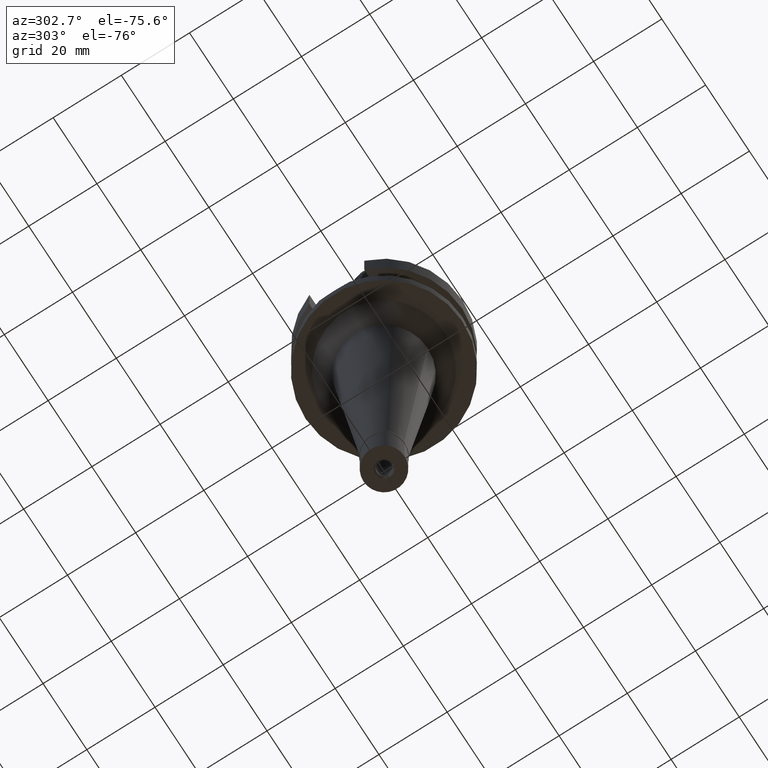
[diagram: clean part render]
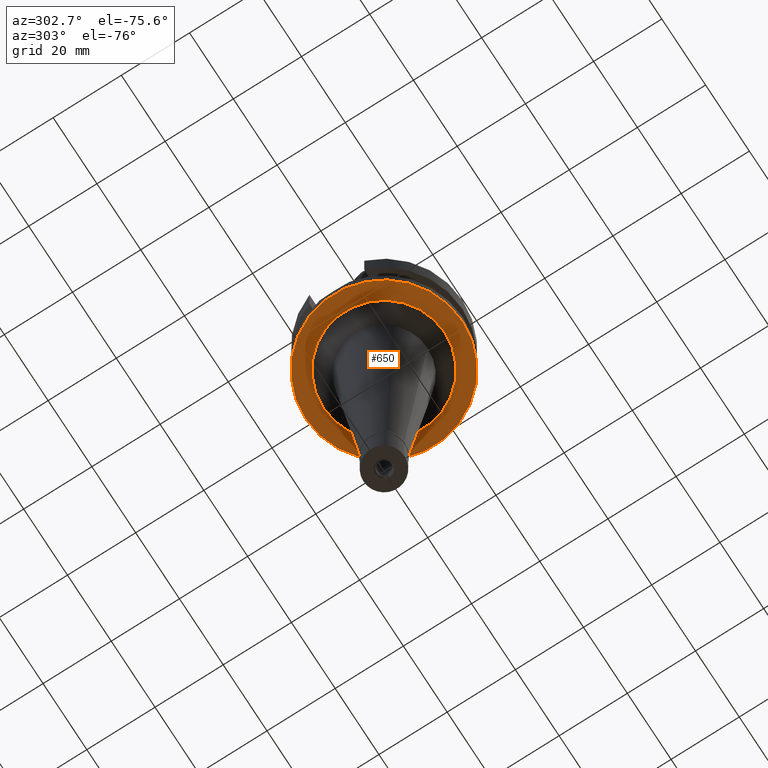
[diagram: same view with one face highlighted and labeled with its STEP entity id]
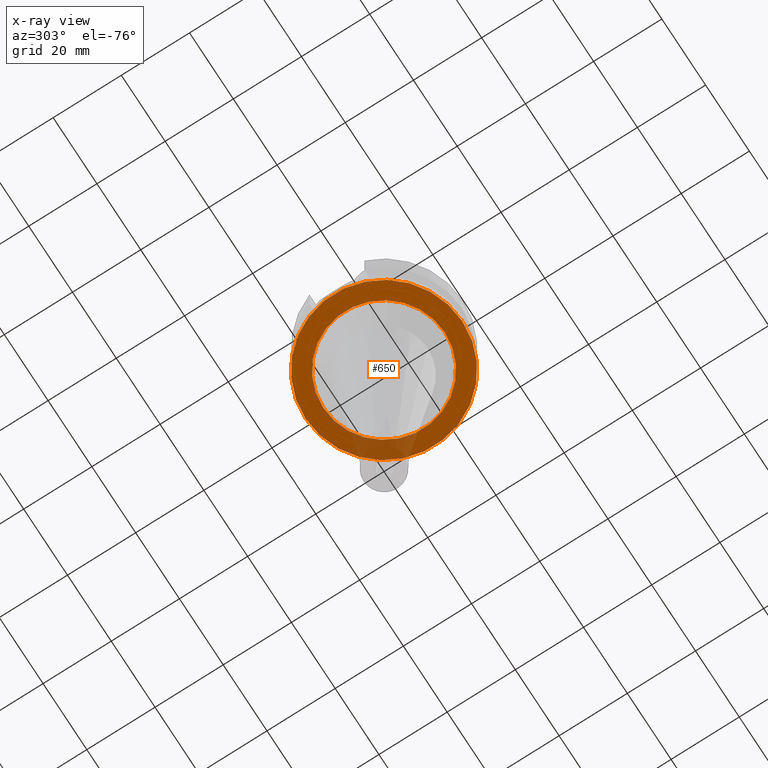
[diagram: x-ray of the same camera — body ghosted, the highlighted face saturated]
A machine part, auxiliary view. The second image highlights one B-rep face of the part: STEP entity #650.
The next image is the same camera in x-ray: the body ghosted, the highlighted face saturated — about 11% of this face is hidden behind the body in this view.
In plain terms, the highlighted planar face has unit normal (0, 0, -1).
Its self-contained STEP definition (entity closure, byte-faithful):
#88 = CIRCLE ( 'NONE', #1619, 17.80661802231999857 ) ;
#97 = DIRECTION ( 'NONE',  ( 0.0000000000000000000, 0.0000000000000000000, -1.000000000000000000 ) ) ;
#144 = EDGE_CURVE ( 'NONE', #1057, #2726, #88, .T. ) ;
#209 = CARTESIAN_POINT ( 'NONE',  ( 0.0000000000000000000, 1.918041816824999936E-14, -22.00000000000000000 ) ) ;
#337 = ORIENTED_EDGE ( 'NONE', *, *, #1886, .F. ) ;
#640 = DIRECTION ( 'NONE',  ( 0.0000000000000000000, -1.000000000000000000, 0.0000000000000000000 ) ) ;
#650 = ADVANCED_FACE ( 'NONE', ( #1820, #829 ), #2391, .T. ) ;
#674 = CARTESIAN_POINT ( 'NONE',  ( 0.0000000000000000000, 1.918041816824999936E-14, -22.00000000000000000 ) ) ;
#829 = FACE_BOUND ( 'NONE', #967, .T. ) ;
#967 = EDGE_LOOP ( 'NONE', ( #2164, #2052 ) ) ;
#1002 = DIRECTION ( 'NONE',  ( 0.0000000000000000000, 1.000000000000000000, 0.0000000000000000000 ) ) ;
#1057 = VERTEX_POINT ( 'NONE', #1356 ) ;
#1102 = DIRECTION ( 'NONE',  ( 0.0000000000000000000, 0.0000000000000000000, 1.000000000000000000 ) ) ;
#1113 = DIRECTION ( 'NONE',  ( 0.0000000000000000000, 0.0000000000000000000, -1.000000000000000000 ) ) ;
#1252 = CARTESIAN_POINT ( 'NONE',  ( 0.0000000000000000000, -23.00000000000000000, -22.00000000000000000 ) ) ;
#1348 = CARTESIAN_POINT ( 'NONE',  ( 0.0000000000000000000, 0.0000000000000000000, -22.00000000000000000 ) ) ;
#1356 = CARTESIAN_POINT ( 'NONE',  ( 0.0000000000000000000, 17.80661802231999857, -22.00000000000000000 ) ) ;
#1374 = EDGE_LOOP ( 'NONE', ( #337, #2681 ) ) ;
#1416 = DIRECTION ( 'NONE',  ( 0.0000000000000000000, -1.000000000000000000, 0.0000000000000000000 ) ) ;
#1494 = CARTESIAN_POINT ( 'NONE',  ( 0.0000000000000000000, 23.00000000000000000, -22.00000000000000000 ) ) ;
#1619 = AXIS2_PLACEMENT_3D ( 'NONE', #2146, #97, #1002 ) ;
#1679 = VERTEX_POINT ( 'NONE', #1252 ) ;
#1739 = DIRECTION ( 'NONE',  ( 0.0000000000000000000, -1.000000000000000000, 0.0000000000000000000 ) ) ;
#1820 = FACE_OUTER_BOUND ( 'NONE', #1374, .T. ) ;
#1886 = EDGE_CURVE ( 'NONE', #2891, #1679, #2898, .T. ) ;
#1969 = EDGE_CURVE ( 'NONE', #2726, #1057, #2037, .T. ) ;
#2037 = CIRCLE ( 'NONE', #2797, 17.80661802231999857 ) ;
#2052 = ORIENTED_EDGE ( 'NONE', *, *, #1969, .F. ) ;
#2116 = EDGE_CURVE ( 'NONE', #1679, #2891, #2363, .T. ) ;
#2128 = CARTESIAN_POINT ( 'NONE',  ( 0.0000000000000000000, 0.0000000000000000000, -22.00000000000000000 ) ) ;
#2146 = CARTESIAN_POINT ( 'NONE',  ( 0.0000000000000000000, 0.0000000000000000000, -22.00000000000000000 ) ) ;
#2164 = ORIENTED_EDGE ( 'NONE', *, *, #144, .F. ) ;
#2224 = DIRECTION ( 'NONE',  ( 0.0000000000000000000, 1.000000000000000000, 0.0000000000000000000 ) ) ;
#2267 = AXIS2_PLACEMENT_3D ( 'NONE', #674, #2713, #1416 ) ;
#2352 = CARTESIAN_POINT ( 'NONE',  ( 0.0000000000000000000, -17.80661802231999857, -22.00000000000000000 ) ) ;
#2363 = CIRCLE ( 'NONE', #2267, 23.00000000000000000 ) ;
#2391 = PLANE ( 'NONE',  #2877 ) ;
#2611 = AXIS2_PLACEMENT_3D ( 'NONE', #209, #1102, #2224 ) ;
#2681 = ORIENTED_EDGE ( 'NONE', *, *, #2116, .F. ) ;
#2697 = DIRECTION ( 'NONE',  ( 0.0000000000000000000, 0.0000000000000000000, -1.000000000000000000 ) ) ;
#2713 = DIRECTION ( 'NONE',  ( 0.0000000000000000000, 0.0000000000000000000, 1.000000000000000000 ) ) ;
#2726 = VERTEX_POINT ( 'NONE', #2352 ) ;
#2797 = AXIS2_PLACEMENT_3D ( 'NONE', #1348, #1113, #1739 ) ;
#2877 = AXIS2_PLACEMENT_3D ( 'NONE', #2128, #2697, #640 ) ;
#2891 = VERTEX_POINT ( 'NONE', #1494 ) ;
#2898 = CIRCLE ( 'NONE', #2611, 23.00000000000000000 ) ;